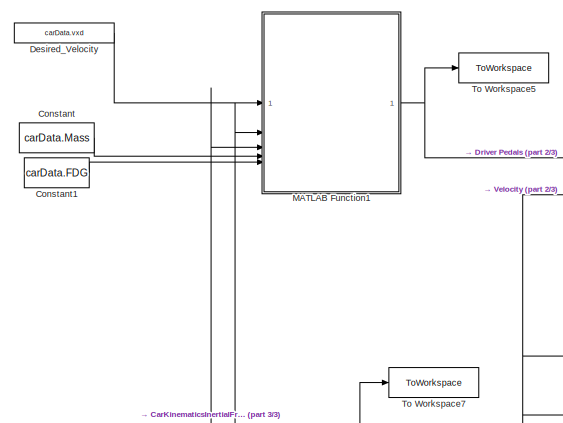
[diagram: root canvas - part 1/3, top left region]
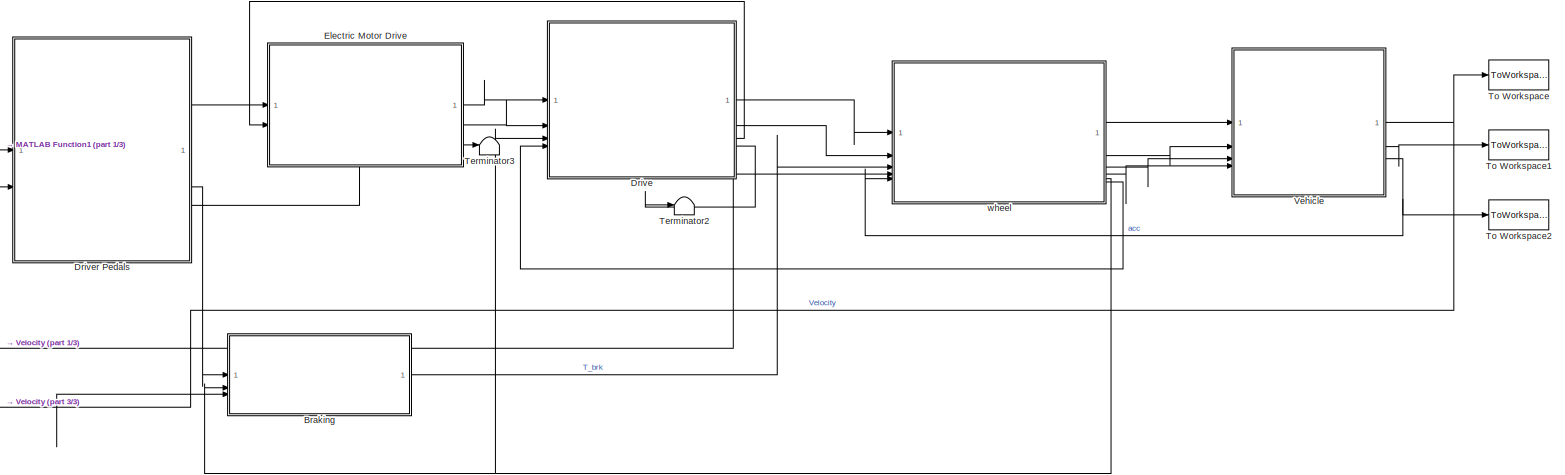
[diagram: root canvas - part 2/3, full width, top band]
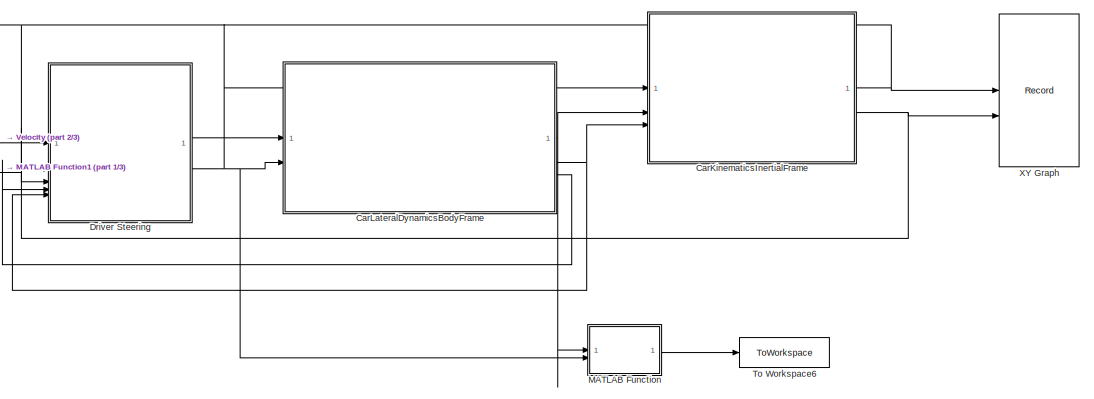
[diagram: root canvas - part 3/3, bottom center region]
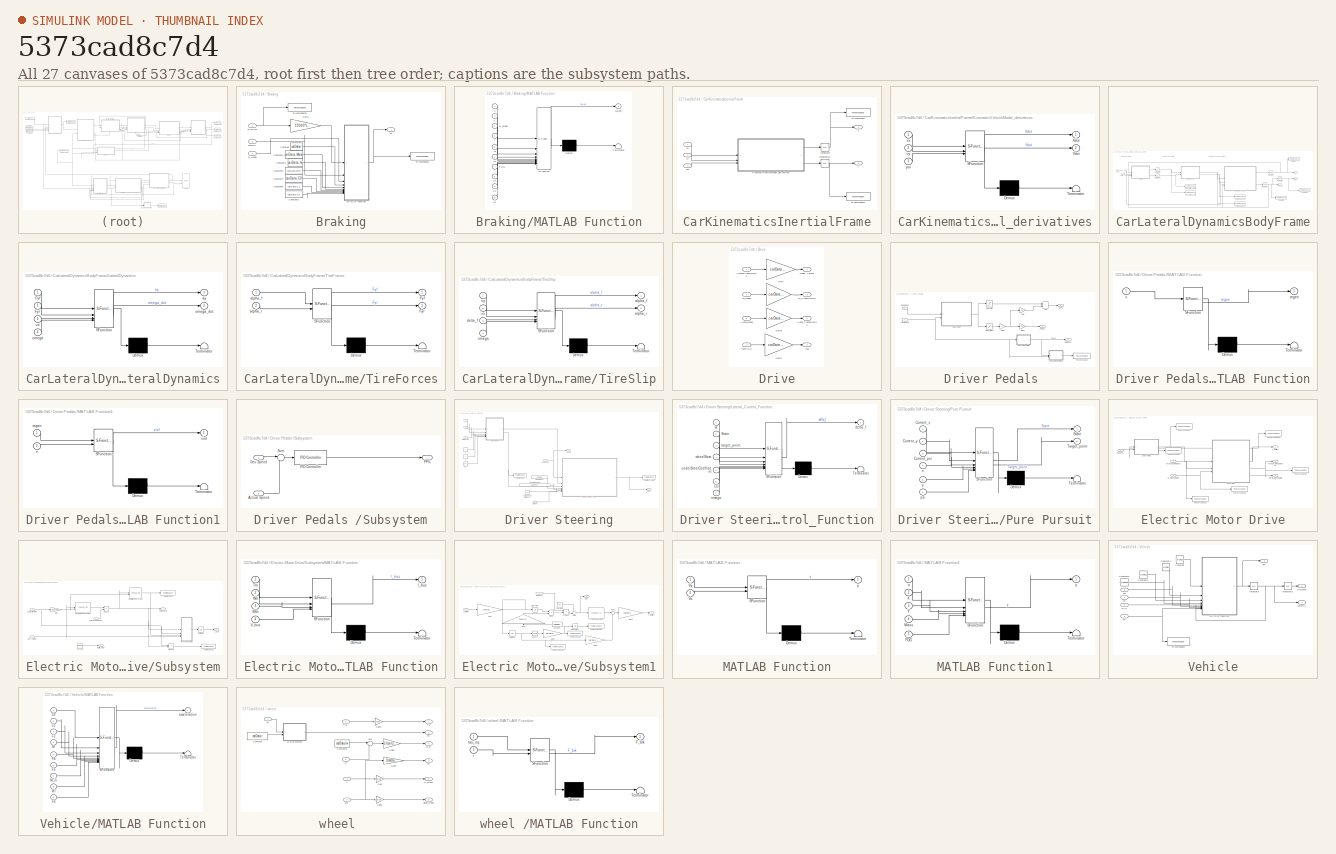
[diagram: thumbnail index - all 27 canvases of the model, root first then tree order]
MODEL slx_5373cad8c7d4
KIND model
CONFIG AbsTol = auto
CONFIG EnableMultiTasking = off
CONFIG FixedStep = 0.1
CONFIG MaxStep = auto
CONFIG MinStep = auto
CONFIG RelTol = 1e-3
CONFIG SampleTimeConstraint = Unconstrained
CONFIG SolverName = FixedStepAuto
CONFIG StartTime = 0.0
CONFIG StopTime = 3600
BLOCK [SubSystem] Braking
BLOCK [Inport] Braking/BrkCMD 
BLOCK [Constant] Braking/Constant
  Value = carData.r
BLOCK [Constant] Braking/Constant1
  Value = carData.Mass
BLOCK [Constant] Braking/Constant2
  Value = carData.Iw
BLOCK [Constant] Braking/Constant3
  Value = carData.FDG
BLOCK [Constant] Braking/Constant4
  Value = carData.C0
BLOCK [Constant] Braking/Constant5
  Value = carData.C1
BLOCK [Constant] Braking/Constant6
  Value = carData.C2
BLOCK [Gain] Braking/Gain1
  Gain = 10000*carData.r
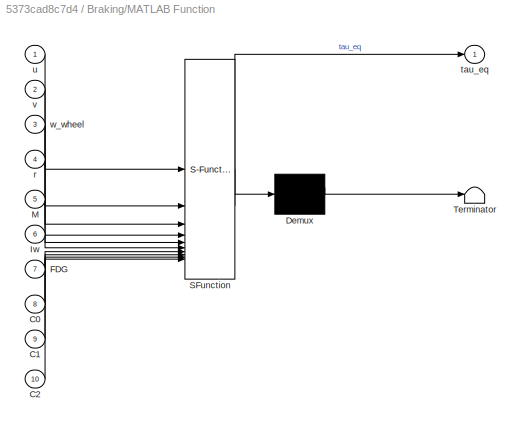
BLOCK [SubSystem] Braking/MATLAB Function
  ErrorFcn = Stateflow.Translate.translate
  PermitHierarchicalResolution = ExplicitOnly
  SFBlockType = MATLAB Function
  TreatAsAtomicUnit = on
BLOCK [Demux] Braking/MATLAB Function/ Demux 
  Outputs = 1
BLOCK [S-Function] Braking/MATLAB Function/ SFunction 
  EnableBusSupport = on
  FunctionName = sf_sfun
  PortCounts = [10 2]
  SFcnIsStateOwnerBlock = off
  SFunctionDeploymentMode = off
  Tag = Stateflow S-Function 7
BLOCK [Terminator] Braking/MATLAB Function/ Terminator 
BLOCK [Inport] Braking/MATLAB Function/C0
  Port = 8
BLOCK [Inport] Braking/MATLAB Function/C1
  Port = 9
BLOCK [Inport] Braking/MATLAB Function/C2
  Port = 10
BLOCK [Inport] Braking/MATLAB Function/FDG
  Port = 7
BLOCK [Inport] Braking/MATLAB Function/Iw
  Port = 6
BLOCK [Inport] Braking/MATLAB Function/M
  Port = 5
BLOCK [Inport] Braking/MATLAB Function/r
  Port = 4
BLOCK [Outport] Braking/MATLAB Function/tau_eq
BLOCK [Inport] Braking/MATLAB Function/u
BLOCK [Inport] Braking/MATLAB Function/v
  Port = 2
BLOCK [Inport] Braking/MATLAB Function/w_wheel
  Port = 3
BLOCK [Outport] Braking/Tb 
  VectorParamsAs1DForOutWhenUnconnected = off
BLOCK [ToWorkspace] Braking/To Workspace
  FixptAsFi = on
  MaxDataPoints = inf
  SampleTime = -1
  SaveFormat = Timeseries
  VariableName = brake
BLOCK [ToWorkspace] Braking/To Workspace1
  FixptAsFi = on
  MaxDataPoints = inf
  SampleTime = -1
  SaveFormat = Timeseries
  VariableName = beta
BLOCK [Inport] Braking/velocity 
  Port = 3
BLOCK [Inport] Braking/w_wheel
  Port = 2
BLOCK [SubSystem] CarKinematicsInertialFrame
BLOCK [Integrator] CarKinematicsInertialFrame/Integrator
  InitialCondition = carData.init.X0
BLOCK [Integrator] CarKinematicsInertialFrame/Integrator1
  InitialCondition = carData.init.Y0
BLOCK [SubSystem] CarKinematicsInertialFrame/KinematicVehicleModel_derivatives
  ErrorFcn = Stateflow.Translate.translate
  PermitHierarchicalResolution = ExplicitOnly
  SFBlockType = MATLAB Function
  TreatAsAtomicUnit = on
BLOCK [Demux] CarKinematicsInertialFrame/KinematicVehicleModel_derivatives/ Demux 
  Outputs = 1
BLOCK [S-Function] CarKinematicsInertialFrame/KinematicVehicleModel_derivatives/ SFunction 
  EnableBusSupport = on
  FunctionName = sf_sfun
  PortCounts = [3 3]
  SFcnIsStateOwnerBlock = off
  SFunctionDeploymentMode = off
  Tag = Stateflow S-Function 5
BLOCK [Terminator] CarKinematicsInertialFrame/KinematicVehicleModel_derivatives/ Terminator 
BLOCK [Outport] CarKinematicsInertialFrame/KinematicVehicleModel_derivatives/Xdot
BLOCK [Outport] CarKinematicsInertialFrame/KinematicVehicleModel_derivatives/Ydot
  Port = 2
BLOCK [Inport] CarKinematicsInertialFrame/KinematicVehicleModel_derivatives/psi
  Port = 3
BLOCK [Inport] CarKinematicsInertialFrame/KinematicVehicleModel_derivatives/vx
BLOCK [Inport] CarKinematicsInertialFrame/KinematicVehicleModel_derivatives/vy
  Port = 2
BLOCK [ToWorkspace] CarKinematicsInertialFrame/To Workspace
  FixptAsFi = on
  MaxDataPoints = inf
  SampleTime = -1
  SaveFormat = Timeseries
  VariableName = X
BLOCK [ToWorkspace] CarKinematicsInertialFrame/To Workspace1
  FixptAsFi = on
  MaxDataPoints = inf
  SampleTime = -1
  SaveFormat = Timeseries
  VariableName = Y
BLOCK [Outport] CarKinematicsInertialFrame/X
BLOCK [Outport] CarKinematicsInertialFrame/Y
  Port = 2
BLOCK [Inport] CarKinematicsInertialFrame/psi
  Port = 3
BLOCK [Inport] CarKinematicsInertialFrame/vx
BLOCK [Inport] CarKinematicsInertialFrame/vy
  Port = 2
BLOCK [SubSystem] CarLateralDynamicsBodyFrame
BLOCK [ToWorkspace] CarLateralDynamicsBodyFrame/Front_Slip_Angle
  FixptAsFi = on
  MaxDataPoints = inf
  SampleTime = -1
  SaveFormat = Timeseries
  VariableName = alpha_f
BLOCK [ToWorkspace] CarLateralDynamicsBodyFrame/Heading
  FixptAsFi = on
  MaxDataPoints = inf
  SampleTime = -1
  SaveFormat = Timeseries
  VariableName = psi
BLOCK [Integrator] CarLateralDynamicsBodyFrame/Integrator
  InitialCondition = carData.init.vy0
BLOCK [Integrator] CarLateralDynamicsBodyFrame/Integrator1
  InitialCondition = carData.init.omega0
BLOCK [Integrator] CarLateralDynamicsBodyFrame/Integrator2
  InitialCondition = carData.init.psi0
BLOCK [SubSystem] CarLateralDynamicsBodyFrame/LateralDynamics
  ErrorFcn = Stateflow.Translate.translate
  PermitHierarchicalResolution = ExplicitOnly
  SFBlockType = MATLAB Function
  TreatAsAtomicUnit = on
BLOCK [Demux] CarLateralDynamicsBodyFrame/LateralDynamics/ Demux 
  Outputs = 1
BLOCK [S-Function] CarLateralDynamicsBodyFrame/LateralDynamics/ SFunction 
  EnableBusSupport = on
  FunctionName = sf_sfun
  Parameters = carData
  PortCounts = [4 3]
  SFcnIsStateOwnerBlock = off
  SFunctionDeploymentMode = off
  Tag = Stateflow S-Function 6
BLOCK [Terminator] CarLateralDynamicsBodyFrame/LateralDynamics/ Terminator 
BLOCK [Inport] CarLateralDynamicsBodyFrame/LateralDynamics/Fyf
BLOCK [Inport] CarLateralDynamicsBodyFrame/LateralDynamics/Fyr
  Port = 2
BLOCK [Outport] CarLateralDynamicsBodyFrame/LateralDynamics/ay
BLOCK [Inport] CarLateralDynamicsBodyFrame/LateralDynamics/omega
  Port = 4
BLOCK [Outport] CarLateralDynamicsBodyFrame/LateralDynamics/omega_dot
  Port = 2
BLOCK [Inport] CarLateralDynamicsBodyFrame/LateralDynamics/vx
  Port = 3
BLOCK [ToWorkspace] CarLateralDynamicsBodyFrame/Rear_Slip_Angle
  FixptAsFi = on
  MaxDataPoints = inf
  SampleTime = -1
  SaveFormat = Timeseries
  VariableName = alpha_r
BLOCK [Saturate] CarLateralDynamicsBodyFrame/Saturation
  LowerLimit = -carData.maxAlpha
  UpperLimit = carData.maxAlpha
BLOCK [Saturate] CarLateralDynamicsBodyFrame/Saturation1
  LowerLimit = -carData.maxAlpha
  UpperLimit = carData.maxAlpha
BLOCK [SubSystem] CarLateralDynamicsBodyFrame/TireForces
  ErrorFcn = Stateflow.Translate.translate
  PermitHierarchicalResolution = ExplicitOnly
  SFBlockType = MATLAB Function
  TreatAsAtomicUnit = on
BLOCK [Demux] CarLateralDynamicsBodyFrame/TireForces/ Demux 
  Outputs = 1
BLOCK [S-Function] CarLateralDynamicsBodyFrame/TireForces/ SFunction 
  EnableBusSupport = on
  FunctionName = sf_sfun
  Parameters = carData
  PortCounts = [2 3]
  SFcnIsStateOwnerBlock = off
  SFunctionDeploymentMode = off
  Tag = Stateflow S-Function 8
BLOCK [Terminator] CarLateralDynamicsBodyFrame/TireForces/ Terminator 
BLOCK [Outport] CarLateralDynamicsBodyFrame/TireForces/Fyf
BLOCK [Outport] CarLateralDynamicsBodyFrame/TireForces/Fyr
  Port = 2
BLOCK [Inport] CarLateralDynamicsBodyFrame/TireForces/alpha_f
BLOCK [Inport] CarLateralDynamicsBodyFrame/TireForces/alpha_r
  Port = 2
BLOCK [SubSystem] CarLateralDynamicsBodyFrame/TireSlip
  ErrorFcn = Stateflow.Translate.translate
  PermitHierarchicalResolution = ExplicitOnly
  SFBlockType = MATLAB Function
  TreatAsAtomicUnit = on
BLOCK [Demux] CarLateralDynamicsBodyFrame/TireSlip/ Demux 
  Outputs = 1
BLOCK [S-Function] CarLateralDynamicsBodyFrame/TireSlip/ SFunction 
  EnableBusSupport = on
  FunctionName = sf_sfun
  Parameters = carData
  PortCounts = [4 3]
  SFcnIsStateOwnerBlock = off
  SFunctionDeploymentMode = off
  Tag = Stateflow S-Function 9
BLOCK [Terminator] CarLateralDynamicsBodyFrame/TireSlip/ Terminator 
BLOCK [Outport] CarLateralDynamicsBodyFrame/TireSlip/alpha_f
BLOCK [Outport] CarLateralDynamicsBodyFrame/TireSlip/alpha_r
  Port = 2
BLOCK [Inport] CarLateralDynamicsBodyFrame/TireSlip/delta_f
  Port = 3
BLOCK [Inport] CarLateralDynamicsBodyFrame/TireSlip/omega
  Port = 4
BLOCK [Inport] CarLateralDynamicsBodyFrame/TireSlip/vx
  Port = 2
BLOCK [Inport] CarLateralDynamicsBodyFrame/TireSlip/vy
BLOCK [ToWorkspace] CarLateralDynamicsBodyFrame/To Workspace5
  FixptAsFi = on
  MaxDataPoints = inf
  SampleTime = -1
  SaveFormat = Timeseries
  VariableName = Fyf
BLOCK [ToWorkspace] CarLateralDynamicsBodyFrame/To Workspace6
  FixptAsFi = on
  MaxDataPoints = inf
  SampleTime = -1
  SaveFormat = Timeseries
  VariableName = Fyr
BLOCK [ToWorkspace] CarLateralDynamicsBodyFrame/Velocity_Y
  FixptAsFi = on
  MaxDataPoints = inf
  SampleTime = -1
  SaveFormat = Timeseries
  VariableName = vy
BLOCK [ToWorkspace] CarLateralDynamicsBodyFrame/Yaw Rate
  FixptAsFi = on
  MaxDataPoints = inf
  SampleTime = -1
  SaveFormat = Timeseries
  VariableName = omega
BLOCK [Inport] CarLateralDynamicsBodyFrame/delta_f
BLOCK [Outport] CarLateralDynamicsBodyFrame/omega
  Port = 3
BLOCK [Outport] CarLateralDynamicsBodyFrame/psi
  Port = 2
BLOCK [Inport] CarLateralDynamicsBodyFrame/vx
  Port = 2
BLOCK [Outport] CarLateralDynamicsBodyFrame/vy
BLOCK [Constant] Constant
  Value = carData.Mass
BLOCK [Constant] Constant1
  Value = carData.FDG
BLOCK [Constant] Desired_Velocity
  Value = carData.vxd
BLOCK [SubSystem] Drive
BLOCK [Outport] Drive/Alpha_Transmission
  Port = 4
BLOCK [Inport] Drive/Alpha_Wheel
  Port = 4
BLOCK [Gain] Drive/Gain
  Gain = carData.FDG
BLOCK [Gain] Drive/Gain1
  Gain = carData.FDG^2
BLOCK [Gain] Drive/Gain2
  Gain = carData.FDG
BLOCK [Gain] Drive/Gain3
  Gain = carData.FDG
BLOCK [Inport] Drive/Inertia_In
  Port = 2
BLOCK [Outport] Drive/Iout
  Port = 2
BLOCK [Inport] Drive/TorqueTransmission
BLOCK [Outport] Drive/W_Transmission
  Port = 3
BLOCK [Inport] Drive/W_Wheel
  Port = 3
BLOCK [Outport] Drive/Wheel Torque
BLOCK [SubSystem] Driver Pedals 
BLOCK [Outport] Driver Pedals /APP%
BLOCK [Inport] Driver Pedals /Actual Speed
  Port = 2
BLOCK [Sum] Driver Pedals /Add
  IconShape = rectangular
BLOCK [Inport] Driver Pedals /Des Speed 
BLOCK [Outport] Driver Pedals /FBPP% 
  Port = 2
BLOCK [Gain] Driver Pedals /Gain
  Gain = 0.1
BLOCK [Gain] Driver Pedals /Gain1
  Gain = 0.9
BLOCK [Gain] Driver Pedals /Gain2
  Gain = -1
BLOCK [SubSystem] Driver Pedals /MATLAB Function
  ErrorFcn = Stateflow.Translate.translate
  PermitHierarchicalResolution = ExplicitOnly
  SFBlockType = MATLAB Function
  TreatAsAtomicUnit = on
BLOCK [Demux] Driver Pedals /MATLAB Function/ Demux 
  Outputs = 1
BLOCK [S-Function] Driver Pedals /MATLAB Function/ SFunction 
  EnableBusSupport = on
  FunctionName = sf_sfun
  PortCounts = [1 2]
  SFcnIsStateOwnerBlock = off
  SFunctionDeploymentMode = off
  Tag = Stateflow S-Function 11
BLOCK [Terminator] Driver Pedals /MATLAB Function/ Terminator 
BLOCK [Outport] Driver Pedals /MATLAB Function/regen
BLOCK [Inport] Driver Pedals /MATLAB Function/v
BLOCK [SubSystem] Driver Pedals /MATLAB Function1
  ErrorFcn = Stateflow.Translate.translate
  PermitHierarchicalResolution = ExplicitOnly
  SFBlockType = MATLAB Function
  TreatAsAtomicUnit = on
BLOCK [Demux] Driver Pedals /MATLAB Function1/ Demux 
  Outputs = 1
BLOCK [S-Function] Driver Pedals /MATLAB Function1/ SFunction 
  EnableBusSupport = on
  FunctionName = sf_sfun
  PortCounts = [2 2]
  SFcnIsStateOwnerBlock = off
  SFunctionDeploymentMode = off
  Tag = Stateflow S-Function 13
BLOCK [Terminator] Driver Pedals /MATLAB Function1/ Terminator 
BLOCK [Inport] Driver Pedals /MATLAB Function1/regen
BLOCK [Inport] Driver Pedals /MATLAB Function1/v
  Port = 2
BLOCK [Outport] Driver Pedals /MATLAB Function1/viol
BLOCK [Outport] Driver Pedals /Regen%
  Port = 3
BLOCK [Saturate] Driver Pedals /Saturation
  LowerLimit = 0
  UpperLimit = 100
BLOCK [Saturate] Driver Pedals /Saturation1
  LowerLimit = -100
  UpperLimit = 0
BLOCK [SubSystem] Driver Pedals /Subsystem
BLOCK [Inport] Driver Pedals /Subsystem/Actual Speed
  Port = 2
BLOCK [Inport] Driver Pedals /Subsystem/Des Speed 
BLOCK [Reference] Driver Pedals /Subsystem/PID Controller  REF=slpidlib/PID Controller
  SourceBlock = slpidlib/PID Controller
  SourceType = PID 1dof
BLOCK [Outport] Driver Pedals /Subsystem/PP%
BLOCK [Sum] Driver Pedals /Subsystem/Sum
  Inputs = |+-
BLOCK [ToWorkspace] Driver Pedals /To Workspace
  FixptAsFi = on
  MaxDataPoints = inf
  SampleTime = -1
  SaveFormat = Timeseries
  VariableName = brake_viol
BLOCK [SubSystem] Driver Steering
BLOCK [Inport] Driver Steering/Actual_Vel
BLOCK [Inport] Driver Steering/Current_psi
  Port = 5
BLOCK [SubSystem] Driver Steering/Lateral_Control_Function
  ErrorFcn = Stateflow.Translate.translate
  PermitHierarchicalResolution = ExplicitOnly
  SFBlockType = MATLAB Function
  TreatAsAtomicUnit = on
BLOCK [Demux] Driver Steering/Lateral_Control_Function/ Demux 
  Outputs = 1
BLOCK [S-Function] Driver Steering/Lateral_Control_Function/ SFunction 
  EnableBusSupport = on
  FunctionName = sf_sfun
  PortCounts = [7 2]
  SFcnIsStateOwnerBlock = off
  SFunctionDeploymentMode = off
  Tag = Stateflow S-Function 10
BLOCK [Terminator] Driver Steering/Lateral_Control_Function/ Terminator 
BLOCK [Inport] Driver Steering/Lateral_Control_Function/LD
  Port = 6
BLOCK [Inport] Driver Steering/Lateral_Control_Function/State
  Port = 2
BLOCK [Outport] Driver Steering/Lateral_Control_Function/delta_f
BLOCK [Inport] Driver Steering/Lateral_Control_Function/omega
  Port = 7
BLOCK [Inport] Driver Steering/Lateral_Control_Function/target_point
  Port = 3
BLOCK [Inport] Driver Steering/Lateral_Control_Function/underSteerCoefficient
  Port = 5
BLOCK [Inport] Driver Steering/Lateral_Control_Function/vx
BLOCK [Inport] Driver Steering/Lateral_Control_Function/wheelBase
  Port = 4
BLOCK [Constant] Driver Steering/Look ahead Distance
  Value = 10
BLOCK [Inport] Driver Steering/Omega
  Port = 4
BLOCK [SubSystem] Driver Steering/Pure Pursuit
  ErrorFcn = Stateflow.Translate.translate
  PermitHierarchicalResolution = ExplicitOnly
  SFBlockType = MATLAB Function
  TreatAsAtomicUnit = on
BLOCK [Demux] Driver Steering/Pure Pursuit/ Demux 
  Outputs = 1
BLOCK [S-Function] Driver Steering/Pure Pursuit/ SFunction 
  EnableBusSupport = on
  FunctionName = sf_sfun
  PortCounts = [6 3]
  SFcnIsStateOwnerBlock = off
  SFunctionDeploymentMode = off
  Tag = Stateflow S-Function 1
BLOCK [Terminator] Driver Steering/Pure Pursuit/ Terminator 
BLOCK [Inport] Driver Steering/Pure Pursuit/Current_psi
  Port = 3
BLOCK [Inport] Driver Steering/Pure Pursuit/Current_x
BLOCK [Inport] Driver Steering/Pure Pursuit/Current_y
  Port = 2
BLOCK [Outport] Driver Steering/Pure Pursuit/State
BLOCK [Outport] Driver Steering/Pure Pursuit/Target_point
  Port = 2
BLOCK [Inport] Driver Steering/Pure Pursuit/psi
  Port = 6
BLOCK [Inport] Driver Steering/Pure Pursuit/x
  Port = 4
BLOCK [Inport] Driver Steering/Pure Pursuit/y
  Port = 5
BLOCK [ToWorkspace] Driver Steering/Steering_Angle
  FixptAsFi = on
  MaxDataPoints = inf
  SampleTime = -1
  SaveFormat = Timeseries
  VariableName = delta
BLOCK [ToWorkspace] Driver Steering/To Workspace
  FixptAsFi = on
  MaxDataPoints = inf
  SampleTime = -1
  SaveFormat = Timeseries
  VariableName = Id_pt
BLOCK [Constant] Driver Steering/UnderSteerCoeff
  Value = carData.understeerCoeff
BLOCK [Outport] Driver Steering/Vxd1
  Port = 2
BLOCK [Constant] Driver Steering/WheelBase
  Value = carData.lf + carData.lr
BLOCK [Inport] Driver Steering/X
  Port = 2
BLOCK [Inport] Driver Steering/Y
  Port = 3
BLOCK [Outport] Driver Steering/delta_f
BLOCK [Constant] Driver Steering/psi
  Value = psi
BLOCK [Constant] Driver Steering/x
  Value = x
BLOCK [Constant] Driver Steering/y
  Value = y
BLOCK [SubSystem] Electric Motor Drive
  PortSchema = {"entries":[{"content":{"sides":[{"content":{"connectorIds":["In1","In2"]},"type":"ConnectorPlacement.EquallySpacedRectSide","uuid":"06f5b496-3bf6-4a8b-aebb-c7eaab5f1ccf"},{"content":{"connectorIds":["Out1","Out2","Out3"],"side":"RIGHT"},"type":"ConnectorPlacement.EquallySpacedRectSide","uuid":"1c240108-0efa-470d-9e35-d17d0925c84e"},{"content":{"side":"TOP"},"type":"ConnectorPlacement.EquallySpace...<+391ch>
BLOCK [Outport] Electric Motor Drive/Inertia_ElectricMotor
  Port = 2
BLOCK [Inport] Electric Motor Drive/Regen%
  Port = 3
BLOCK [SubSystem] Electric Motor Drive/Subsystem
BLOCK [Inport] Electric Motor Drive/Subsystem/Bus_Voltage
BLOCK [Constant] Electric Motor Drive/Subsystem/Constant
  Value = motorData.Inertia
BLOCK [Gain] Electric Motor Drive/Subsystem/Gain
  Gain = rps2rpm
BLOCK [Outport] Electric Motor Drive/Subsystem/I_bus
BLOCK [Outport] Electric Motor Drive/Subsystem/Inertia_Motor
  Port = 3
BLOCK [SubSystem] Electric Motor Drive/Subsystem/MATLAB Function
  ErrorFcn = Stateflow.Translate.translate
  PermitHierarchicalResolution = ExplicitOnly
  SFBlockType = MATLAB Function
  TreatAsAtomicUnit = on
BLOCK [Demux] Electric Motor Drive/Subsystem/MATLAB Function/ Demux 
  Outputs = 1
BLOCK [S-Function] Electric Motor Drive/Subsystem/MATLAB Function/ SFunction 
  EnableBusSupport = on
  FunctionName = sf_sfun
  PortCounts = [4 2]
  SFcnIsStateOwnerBlock = off
  SFunctionDeploymentMode = off
  Tag = Stateflow S-Function 4
BLOCK [Terminator] Electric Motor Drive/Subsystem/MATLAB Function/ Terminator 
BLOCK [Inport] Electric Motor Drive/Subsystem/MATLAB Function/Effn
  Port = 3
BLOCK [Outport] Electric Motor Drive/Subsystem/MATLAB Function/I_bus
BLOCK [Inport] Electric Motor Drive/Subsystem/MATLAB Function/Tm
BLOCK [Inport] Electric Motor Drive/Subsystem/MATLAB Function/V_bus
  Port = 4
BLOCK [Inport] Electric Motor Drive/Subsystem/MATLAB Function/Wn
  Port = 2
BLOCK [Lookup_n-D] Electric Motor Drive/Subsystem/Max Motor Torque Table1
  BreakpointsForDimension1 = motorData.vbus
  BreakpointsForDimension2 = motorData.rpm
  InputPortMap = u0,u1
  InternalRulePriority = Speed
  RndMeth = Simplest
  Table = motorData.maxtorque
BLOCK [Lookup_n-D] Electric Motor Drive/Subsystem/Motor Effeciency Table
  BreakpointsForDimension1 = motorData.eta_torque
  BreakpointsForDimension2 = motorData.eta_speed
  InputPortMap = u0,u1
  InternalRulePriority = Speed
  RndMeth = Simplest
  Table = motorData.eta_val
BLOCK [Outport] Electric Motor Drive/Subsystem/Motor Torque
  Port = 2
BLOCK [Product] Electric Motor Drive/Subsystem/Product
BLOCK [Product] Electric Motor Drive/Subsystem/Product1
BLOCK [ToWorkspace] Electric Motor Drive/Subsystem/To Workspace
  FixptAsFi = on
  MaxDataPoints = inf
  SampleTime = -1
  SaveFormat = Timeseries
  VariableName = effeciency_motor
BLOCK [ToWorkspace] Electric Motor Drive/Subsystem/To Workspace1
  FixptAsFi = on
  MaxDataPoints = inf
  SampleTime = -1
  SaveFormat = Timeseries
  VariableName = MotorPower
BLOCK [Inport] Electric Motor Drive/Subsystem/TorqueCommand%
  Port = 2
BLOCK [UnitDelay] Electric Motor Drive/Subsystem/Unit Delay
  HasFrameUpgradeWarning = on
  SampleTime = -1
BLOCK [Inport] Electric Motor Drive/Subsystem/W_ElectricMotor
  Port = 3
BLOCK [SubSystem] Electric Motor Drive/Subsystem1
BLOCK [Lookup_n-D] Electric Motor Drive/Subsystem1/1-D Lookup Table
  BreakpointsForDimension1 = batData.SOC
  InputPortMap = u0
  InternalRulePriority = Speed
  NumberOfTableDimensions = 1
  RndMeth = Simplest
  Table = batData.OCV
BLOCK [Constant] Electric Motor Drive/Subsystem1/Constant
  NameLocation = top
  Value = batData.C
BLOCK [Constant] Electric Motor Drive/Subsystem1/Constant1
  Value = 0.8
BLOCK [Product] Electric Motor Drive/Subsystem1/Divide
  Inputs = */
BLOCK [Gain] Electric Motor Drive/Subsystem1/Gain
  Gain = 1/batData.numParallel
BLOCK [Gain] Electric Motor Drive/Subsystem1/Gain1
  Gain = 3600/(batData.numParallel)
  NameLocation = right
BLOCK [Gain] Electric Motor Drive/Subsystem1/Gain2
  Gain = batData.Rint
BLOCK [Gain] Electric Motor Drive/Subsystem1/Gain3
  Gain = batData.numSeries
BLOCK [Gain] Electric Motor Drive/Subsystem1/Gain4
  Gain = batData.Rint
BLOCK [Inport] Electric Motor Drive/Subsystem1/I_battery
BLOCK [Integrator] Electric Motor Drive/Subsystem1/Integrator
BLOCK [Integrator] Electric Motor Drive/Subsystem1/Integrator1
BLOCK [Product] Electric Motor Drive/Subsystem1/Product
BLOCK [Inport] Electric Motor Drive/Subsystem1/Regen%
  Port = 2
BLOCK [Outport] Electric Motor Drive/Subsystem1/SOC
  Port = 2
BLOCK [Math] Electric Motor Drive/Subsystem1/Square
  Operator = square
BLOCK [Sum] Electric Motor Drive/Subsystem1/Sum
  Inputs = +-|
BLOCK [Sum] Electric Motor Drive/Subsystem1/Sum1
  Inputs = |+-
BLOCK [ToWorkspace] Electric Motor Drive/Subsystem1/To Workspace
  FixptAsFi = on
  MaxDataPoints = inf
  SampleTime = -1
  SaveFormat = Timeseries
  VariableName = BatteryPowerLosses
BLOCK [ToWorkspace] Electric Motor Drive/Subsystem1/To Workspace1
  FixptAsFi = on
  MaxDataPoints = inf
  SampleTime = -1
  SaveFormat = Timeseries
  VariableName = BatteryEnergyLosses
BLOCK [ToWorkspace] Electric Motor Drive/Subsystem1/To Workspace2
  FixptAsFi = on
  MaxDataPoints = inf
  SampleTime = -1
  SaveFormat = Timeseries
  VariableName = OCV
BLOCK [UnitDelay] Electric Motor Drive/Subsystem1/Unit Delay
  HasFrameUpgradeWarning = on
  SampleTime = -1
BLOCK [Outport] Electric Motor Drive/Subsystem1/V_battery
BLOCK [ToWorkspace] Electric Motor Drive/To Workspace
  FixptAsFi = on
  MaxDataPoints = inf
  SampleTime = -1
  SaveFormat = Timeseries
  VariableName = SOC
BLOCK [ToWorkspace] Electric Motor Drive/To Workspace1
  FixptAsFi = on
  MaxDataPoints = inf
  SampleTime = -1
  SaveFormat = Timeseries
  VariableName = alpha
BLOCK [ToWorkspace] Electric Motor Drive/To Workspace2
  FixptAsFi = on
  MaxDataPoints = inf
  SampleTime = -1
  SaveFormat = Timeseries
  VariableName = V_bat
BLOCK [ToWorkspace] Electric Motor Drive/To Workspace3
  FixptAsFi = on
  MaxDataPoints = inf
  SampleTime = -1
  SaveFormat = Timeseries
  VariableName = I_bat
BLOCK [ToWorkspace] Electric Motor Drive/To Workspace4
  FixptAsFi = on
  MaxDataPoints = inf
  SampleTime = -1
  SaveFormat = Timeseries
  VariableName = motor_torque
BLOCK [ToWorkspace] Electric Motor Drive/To Workspace5
  FixptAsFi = on
  MaxDataPoints = inf
  SampleTime = -1
  SaveFormat = Timeseries
  VariableName = motor_speed
BLOCK [Inport] Electric Motor Drive/TorqueCommand%
BLOCK [Outport] Electric Motor Drive/Torque_ElectricMotor
BLOCK [Outport] Electric Motor Drive/V_battery
  Port = 3
BLOCK [Inport] Electric Motor Drive/W_ElectricMotor
  Port = 2
BLOCK [SubSystem] MATLAB Function
  ErrorFcn = Stateflow.Translate.translate
  PermitHierarchicalResolution = ExplicitOnly
  SFBlockType = MATLAB Function
  TreatAsAtomicUnit = on
BLOCK [Demux] MATLAB Function/ Demux 
  Outputs = 1
BLOCK [S-Function] MATLAB Function/ SFunction 
  EnableBusSupport = on
  FunctionName = sf_sfun
  PortCounts = [2 2]
  SFcnIsStateOwnerBlock = off
  SFunctionDeploymentMode = off
  Tag = Stateflow S-Function 12
BLOCK [Terminator] MATLAB Function/ Terminator 
BLOCK [Inport] MATLAB Function/Vx
  Port = 2
BLOCK [Inport] MATLAB Function/Vy
BLOCK [Outport] MATLAB Function/y
BLOCK [SubSystem] MATLAB Function1
  ErrorFcn = Stateflow.Translate.translate
  PermitHierarchicalResolution = ExplicitOnly
  SFBlockType = MATLAB Function
  TreatAsAtomicUnit = on
BLOCK [Demux] MATLAB Function1/ Demux 
  Outputs = 1
BLOCK [S-Function] MATLAB Function1/ SFunction 
  EnableBusSupport = on
  FunctionName = sf_sfun
  PortCounts = [5 2]
  SFcnIsStateOwnerBlock = off
  SFunctionDeploymentMode = off
  Tag = Stateflow S-Function 14
BLOCK [Terminator] MATLAB Function1/ Terminator 
BLOCK [Inport] MATLAB Function1/FDG
  Port = 5
BLOCK [Inport] MATLAB Function1/Mass
  Port = 4
BLOCK [Inport] MATLAB Function1/X
  Port = 2
BLOCK [Inport] MATLAB Function1/Y
  Port = 3
BLOCK [Inport] MATLAB Function1/u
BLOCK [Outport] MATLAB Function1/y
BLOCK [Terminator] Terminator2
BLOCK [Terminator] Terminator3
BLOCK [ToWorkspace] To Workspace
  FixptAsFi = on
  MaxDataPoints = inf
  SampleTime = -1
  SaveFormat = Timeseries
  VariableName = vel
BLOCK [ToWorkspace] To Workspace1
  FixptAsFi = on
  MaxDataPoints = inf
  SampleTime = -1
  SaveFormat = Timeseries
  VariableName = dist
BLOCK [ToWorkspace] To Workspace2
  FixptAsFi = on
  MaxDataPoints = inf
  SampleTime = -1
  SaveFormat = Timeseries
  VariableName = acc
BLOCK [ToWorkspace] To Workspace5
  FixptAsFi = on
  MaxDataPoints = inf
  SampleTime = -1
  SaveFormat = Timeseries
  VariableName = veh_speed_desd
BLOCK [ToWorkspace] To Workspace6
  FixptAsFi = on
  MaxDataPoints = inf
  SampleTime = -1
  SaveFormat = Timeseries
  VariableName = Velocity
BLOCK [ToWorkspace] To Workspace7
  FixptAsFi = on
  MaxDataPoints = inf
  SampleTime = -1
  SaveFormat = Timeseries
  VariableName = veh_speed
BLOCK [SubSystem] Vehicle
BLOCK [Constant] Vehicle/Constant
  Value = carData.C0
BLOCK [Constant] Vehicle/Constant1
  Value = carData.C1
BLOCK [Constant] Vehicle/Constant2
  Value = carData.C2
BLOCK [Constant] Vehicle/Constant3
  Value = carData.Mass
BLOCK [Outport] Vehicle/Distance 
  Port = 2
  VectorParamsAs1DForOutWhenUnconnected = off
BLOCK [Inport] Vehicle/Fb 
  Port = 2
BLOCK [Inport] Vehicle/Fd
  Port = 3
BLOCK [Inport] Vehicle/Fw 
BLOCK [Integrator] Vehicle/Integrator
  LimitOutput = on
  LowerSaturationLimit = 0
BLOCK [Integrator] Vehicle/Integrator1
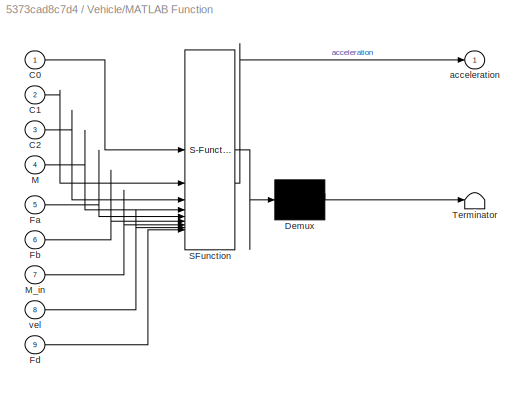
BLOCK [SubSystem] Vehicle/MATLAB Function
  ErrorFcn = Stateflow.Translate.translate
  PermitHierarchicalResolution = ExplicitOnly
  SFBlockType = MATLAB Function
  TreatAsAtomicUnit = on
BLOCK [Demux] Vehicle/MATLAB Function/ Demux 
  Outputs = 1
BLOCK [S-Function] Vehicle/MATLAB Function/ SFunction 
  EnableBusSupport = on
  FunctionName = sf_sfun
  PortCounts = [9 2]
  SFcnIsStateOwnerBlock = off
  SFunctionDeploymentMode = off
  Tag = Stateflow S-Function 2
BLOCK [Terminator] Vehicle/MATLAB Function/ Terminator 
BLOCK [Inport] Vehicle/MATLAB Function/C0
BLOCK [Inport] Vehicle/MATLAB Function/C1
  Port = 2
BLOCK [Inport] Vehicle/MATLAB Function/C2
  Port = 3
BLOCK [Inport] Vehicle/MATLAB Function/Fa
  Port = 5
BLOCK [Inport] Vehicle/MATLAB Function/Fb
  Port = 6
BLOCK [Inport] Vehicle/MATLAB Function/Fd
  Port = 9
BLOCK [Inport] Vehicle/MATLAB Function/M
  Port = 4
BLOCK [Inport] Vehicle/MATLAB Function/M_in
  Port = 7
BLOCK [Outport] Vehicle/MATLAB Function/acceleration
  VectorParamsAs1DForOutWhenUnconnected = off
BLOCK [Inport] Vehicle/MATLAB Function/vel
  Port = 8
BLOCK [Inport] Vehicle/M_in 
  Port = 4
BLOCK [ToWorkspace] Vehicle/To Workspace
  FixptAsFi = on
  MaxDataPoints = inf
  SampleTime = -1
  SaveFormat = Timeseries
  VariableName = Faero
BLOCK [Outport] Vehicle/acc
  Port = 3
BLOCK [Outport] Vehicle/velocity 
  VectorParamsAs1DForOutWhenUnconnected = off
BLOCK [Record] XY Graph
  CompatibilityTag = XY
  FileSettingsInternal = {"entries":[{"content":{"excelSettings":{"content":{},"type":"Streamout.ExcelSettings"}},"type":"Streamout.FileSettingStorage","uuid":""}],"packageUris":["http:\/\/schema.mathworks.com\/mf0\/streamout_blocks\/R2020a"],"version":"1.0"}
  Layout = [1 1]
  SignalsInternal = {"entries":[{"content":{"signals":[{"content":{"blockPath":[],"dimensions":[1],"domain":"","lineColor":"#0072bd","plots":[1],"port":1,"sid":[""],"signalID":2554,"signalName":"CarKinematicsInertialFrame:1"},"type":"RecordBlkView.Signal","uuid":""},{"content":{"blockPath":[],"dimensions":[1],"domain":"","lineColor":"#ff13a6","plots":[1],"port":2,"sid":[""],"signalID":2558,"signalName":"CarKinematics...<+204ch>
  VisualizationBindings = {"xyplotplugin":{"info":[{"series":[{"bindingParametersList":[{"parameter":"Y-Axis","signalID":2558,"signalName":"CarKinematicsInertialFrame:2"},{"parameter":"X-Axis","signalID":2554,"signalName":"CarKinematicsInertialFrame:1"}],"seriesID":48790}],"subplotID":1}]}}
  st = -1
BLOCK [SubSystem] wheel 
BLOCK [Constant] wheel /Constant
  Value = carData.r
BLOCK [Constant] wheel /Constant6
  Value = carData.Iw
BLOCK [Outport] wheel /F_w
BLOCK [Outport] wheel /Fb 
  Port = 2
BLOCK [Outport] wheel /Fd
  Port = 3
BLOCK [Gain] wheel /Gain
  Gain = 1/carData.r
BLOCK [Gain] wheel /Gain1
  Gain = 1/carData.r
BLOCK [Gain] wheel /Gain2
  Gain = 1/carData.r
BLOCK [Gain] wheel /Gain3
  Gain = 1/(carData.r*carData.r)
BLOCK [Gain] wheel /Gain4
  Gain = 1/carData.C2
BLOCK [Inport] wheel /I_in
  Port = 2
BLOCK [SubSystem] wheel /MATLAB Function
  ErrorFcn = Stateflow.Translate.translate
  PermitHierarchicalResolution = ExplicitOnly
  SFBlockType = MATLAB Function
  TreatAsAtomicUnit = on
BLOCK [Demux] wheel /MATLAB Function/ Demux 
  Outputs = 1
BLOCK [S-Function] wheel /MATLAB Function/ SFunction 
  EnableBusSupport = on
  FunctionName = sf_sfun
  PortCounts = [2 2]
  SFcnIsStateOwnerBlock = off
  SFunctionDeploymentMode = off
  Tag = Stateflow S-Function 3
BLOCK [Terminator] wheel /MATLAB Function/ Terminator 
BLOCK [Outport] wheel /MATLAB Function/F_brk
BLOCK [Inport] wheel /MATLAB Function/r
  Port = 2
BLOCK [Inport] wheel /MATLAB Function/tau_eq
BLOCK [Outport] wheel /M_in
  Port = 4
BLOCK [Sum] wheel /Sum
  Inputs = |++
BLOCK [Inport] wheel /T_W
BLOCK [Inport] wheel /Tb
  Port = 3
BLOCK [Inport] wheel /V
  Port = 4
BLOCK [Inport] wheel /acc
  Port = 5
BLOCK [Outport] wheel /alpha_wheel
  Port = 6
BLOCK [Outport] wheel /w_wheel
  Port = 5
ANNOTATION CarLateralDynamicsBodyFrame: Lateral Dynamic Calculations
ANNOTATION CarLateralDynamicsBodyFrame: Tire Force Calculation
ANNOTATION CarLateralDynamicsBodyFrame: Tire Slip Calculation
NET Braking/BrkCMD :1 -> Braking/Gain1:1, Braking/To Workspace1:1
LINE Braking/Constant1:1 -> Braking/MATLAB Function:5
LINE Braking/Constant2:1 -> Braking/MATLAB Function:6
LINE Braking/Constant3:1 -> Braking/MATLAB Function:7
LINE Braking/Constant4:1 -> Braking/MATLAB Function:8
LINE Braking/Constant5:1 -> Braking/MATLAB Function:9
LINE Braking/Constant6:1 -> Braking/MATLAB Function:10
LINE Braking/Constant:1 -> Braking/MATLAB Function:4
LINE Braking/Gain1:1 -> Braking/MATLAB Function:1
NET Braking/MATLAB Function:1 -> Braking/Tb :1, Braking/To Workspace:1
LINE Braking/velocity :1 -> Braking/MATLAB Function:2
LINE Braking/w_wheel:1 -> Braking/MATLAB Function:3
LINE Braking:1 -> wheel :3
NET CarKinematicsInertialFrame/Integrator1:1 -> CarKinematicsInertialFrame/To Workspace1:1, CarKinematicsInertialFrame/Y:1
NET CarKinematicsInertialFrame/Integrator:1 -> CarKinematicsInertialFrame/To Workspace:1, CarKinematicsInertialFrame/X:1
LINE CarKinematicsInertialFrame/KinematicVehicleModel_derivatives:1 -> CarKinematicsInertialFrame/Integrator:1
LINE CarKinematicsInertialFrame/KinematicVehicleModel_derivatives:2 -> CarKinematicsInertialFrame/Integrator1:1
LINE CarKinematicsInertialFrame/psi:1 -> CarKinematicsInertialFrame/KinematicVehicleModel_derivatives:3
LINE CarKinematicsInertialFrame/vx:1 -> CarKinematicsInertialFrame/KinematicVehicleModel_derivatives:1
LINE CarKinematicsInertialFrame/vy:1 -> CarKinematicsInertialFrame/KinematicVehicleModel_derivatives:2
NET CarKinematicsInertialFrame:1 -> Driver Steering:2, MATLAB Function1:2, XY Graph:1
NET CarKinematicsInertialFrame:2 -> Driver Steering:3, MATLAB Function1:3, XY Graph:2
NET CarLateralDynamicsBodyFrame/Integrator1:1 -> CarLateralDynamicsBodyFrame/Integrator2:1, CarLateralDynamicsBodyFrame/LateralDynamics:4, CarLateralDynamicsBodyFrame/TireSlip:4, CarLateralDynamicsBodyFrame/Yaw Rate:1, CarLateralDynamicsBodyFrame/omega:1
NET CarLateralDynamicsBodyFrame/Integrator2:1 -> CarLateralDynamicsBodyFrame/Heading:1, CarLateralDynamicsBodyFrame/psi:1
NET CarLateralDynamicsBodyFrame/Integrator:1 -> CarLateralDynamicsBodyFrame/TireSlip:1, CarLateralDynamicsBodyFrame/Velocity_Y:1, CarLateralDynamicsBodyFrame/vy:1
LINE CarLateralDynamicsBodyFrame/LateralDynamics:1 -> CarLateralDynamicsBodyFrame/Integrator:1
LINE CarLateralDynamicsBodyFrame/LateralDynamics:2 -> CarLateralDynamicsBodyFrame/Integrator1:1
NET CarLateralDynamicsBodyFrame/Saturation1:1 -> CarLateralDynamicsBodyFrame/Rear_Slip_Angle:1, CarLateralDynamicsBodyFrame/TireForces:2
NET CarLateralDynamicsBodyFrame/Saturation:1 -> CarLateralDynamicsBodyFrame/Front_Slip_Angle:1, CarLateralDynamicsBodyFrame/TireForces:1
NET CarLateralDynamicsBodyFrame/TireForces:1 -> CarLateralDynamicsBodyFrame/LateralDynamics:1, CarLateralDynamicsBodyFrame/To Workspace5:1
NET CarLateralDynamicsBodyFrame/TireForces:2 -> CarLateralDynamicsBodyFrame/LateralDynamics:2, CarLateralDynamicsBodyFrame/To Workspace6:1
LINE CarLateralDynamicsBodyFrame/TireSlip:1 -> CarLateralDynamicsBodyFrame/Saturation:1
LINE CarLateralDynamicsBodyFrame/TireSlip:2 -> CarLateralDynamicsBodyFrame/Saturation1:1
LINE CarLateralDynamicsBodyFrame/delta_f:1 -> CarLateralDynamicsBodyFrame/TireSlip:3
NET CarLateralDynamicsBodyFrame/vx:1 -> CarLateralDynamicsBodyFrame/LateralDynamics:3, CarLateralDynamicsBodyFrame/TireSlip:2
NET CarLateralDynamicsBodyFrame:1 -> CarKinematicsInertialFrame:2, MATLAB Function:1
NET CarLateralDynamicsBodyFrame:2 -> CarKinematicsInertialFrame:3, Driver Steering:5
LINE CarLateralDynamicsBodyFrame:3 -> Driver Steering:4
LINE Constant1:1 -> MATLAB Function1:5
LINE Constant:1 -> MATLAB Function1:4
LINE Desired_Velocity:1 -> MATLAB Function1:1
LINE Drive/Alpha_Wheel:1 -> Drive/Gain3:1
LINE Drive/Gain1:1 -> Drive/Iout:1
LINE Drive/Gain2:1 -> Drive/W_Transmission:1
LINE Drive/Gain3:1 -> Drive/Alpha_Transmission:1
LINE Drive/Gain:1 -> Drive/Wheel Torque:1
LINE Drive/Inertia_In:1 -> Drive/Gain1:1
LINE Drive/TorqueTransmission:1 -> Drive/Gain:1
LINE Drive/W_Wheel:1 -> Drive/Gain2:1
LINE Drive:1 -> wheel :1
LINE Drive:2 -> wheel :2
LINE Drive:3 -> Electric Motor Drive:2
LINE Drive:4 -> Terminator2:1
NET Driver Pedals /Actual Speed:1 -> Driver Pedals /MATLAB Function1:2, Driver Pedals /MATLAB Function:1, Driver Pedals /Subsystem:2
LINE Driver Pedals /Add:1 -> Driver Pedals /APP%:1
LINE Driver Pedals /Des Speed :1 -> Driver Pedals /Subsystem:1
LINE Driver Pedals /Gain1:1 -> Driver Pedals /FBPP% :1
NET Driver Pedals /Gain2:1 -> Driver Pedals /Gain1:1, Driver Pedals /Gain:1
LINE Driver Pedals /Gain:1 -> Driver Pedals /Add:2
LINE Driver Pedals /MATLAB Function1:1 -> Driver Pedals /To Workspace:1
NET Driver Pedals /MATLAB Function:1 -> Driver Pedals /MATLAB Function1:1, Driver Pedals /Regen%:1
LINE Driver Pedals /Saturation1:1 -> Driver Pedals /Gain2:1
LINE Driver Pedals /Saturation:1 -> Driver Pedals /Add:1
LINE Driver Pedals /Subsystem/Actual Speed:1 -> Driver Pedals /Subsystem/Sum:2
LINE Driver Pedals /Subsystem/Des Speed :1 -> Driver Pedals /Subsystem/Sum:1
LINE Driver Pedals /Subsystem/PID Controller:1 -> Driver Pedals /Subsystem/PP%:1
LINE Driver Pedals /Subsystem/Sum:1 -> Driver Pedals /Subsystem/PID Controller:1
NET Driver Pedals /Subsystem:1 -> Driver Pedals /Saturation1:1, Driver Pedals /Saturation:1
LINE Driver Pedals :1 -> Electric Motor Drive:1
LINE Driver Pedals :2 -> Braking:1
LINE Driver Pedals :3 -> Electric Motor Drive:3
NET Driver Steering/Actual_Vel:1 -> Driver Steering/Lateral_Control_Function:1, Driver Steering/Vxd1:1
LINE Driver Steering/Current_psi:1 -> Driver Steering/Pure Pursuit:3
NET Driver Steering/Lateral_Control_Function:1 -> Driver Steering/Steering_Angle:1, Driver Steering/delta_f:1
LINE Driver Steering/Look ahead Distance:1 -> Driver Steering/Lateral_Control_Function:6
LINE Driver Steering/Omega:1 -> Driver Steering/Lateral_Control_Function:7
LINE Driver Steering/Pure Pursuit:1 -> Driver Steering/Lateral_Control_Function:2
NET Driver Steering/Pure Pursuit:2 -> Driver Steering/Lateral_Control_Function:3, Driver Steering/To Workspace:1
LINE Driver Steering/UnderSteerCoeff:1 -> Driver Steering/Lateral_Control_Function:5
LINE Driver Steering/WheelBase:1 -> Driver Steering/Lateral_Control_Function:4
LINE Driver Steering/X:1 -> Driver Steering/Pure Pursuit:1
LINE Driver Steering/Y:1 -> Driver Steering/Pure Pursuit:2
LINE Driver Steering/psi:1 -> Driver Steering/Pure Pursuit:6
LINE Driver Steering/x:1 -> Driver Steering/Pure Pursuit:4
LINE Driver Steering/y:1 -> Driver Steering/Pure Pursuit:5
LINE Driver Steering:1 -> CarLateralDynamicsBodyFrame:1
NET Driver Steering:2 -> CarKinematicsInertialFrame:1, CarLateralDynamicsBodyFrame:2, MATLAB Function:2
LINE Electric Motor Drive/Regen%:1 -> Electric Motor Drive/Subsystem1:2
NET Electric Motor Drive/Subsystem/Bus_Voltage:1 -> Electric Motor Drive/Subsystem/MATLAB Function:4, Electric Motor Drive/Subsystem/Max Motor Torque Table1:1
LINE Electric Motor Drive/Subsystem/Constant:1 -> Electric Motor Drive/Subsystem/Inertia_Motor:1
NET Electric Motor Drive/Subsystem/Gain:1 -> Electric Motor Drive/Subsystem/Max Motor Torque Table1:2, Electric Motor Drive/Subsystem/Motor Effeciency Table:2
LINE Electric Motor Drive/Subsystem/MATLAB Function:1 -> Electric Motor Drive/Subsystem/Unit Delay:1
LINE Electric Motor Drive/Subsystem/Max Motor Torque Table1:1 -> Electric Motor Drive/Subsystem/Product:1
NET Electric Motor Drive/Subsystem/Motor Effeciency Table:1 -> Electric Motor Drive/Subsystem/MATLAB Function:3, Electric Motor Drive/Subsystem/To Workspace:1
LINE Electric Motor Drive/Subsystem/Product1:1 -> Electric Motor Drive/Subsystem/To Workspace1:1
NET Electric Motor Drive/Subsystem/Product:1 -> Electric Motor Drive/Subsystem/MATLAB Function:1, Electric Motor Drive/Subsystem/Motor Effeciency Table:1, Electric Motor Drive/Subsystem/Motor Torque:1, Electric Motor Drive/Subsystem/Product1:2
LINE Electric Motor Drive/Subsystem/TorqueCommand%:1 -> Electric Motor Drive/Subsystem/Product:2
LINE Electric Motor Drive/Subsystem/Unit Delay:1 -> Electric Motor Drive/Subsystem/I_bus:1
NET Electric Motor Drive/Subsystem/W_ElectricMotor:1 -> Electric Motor Drive/Subsystem/Gain:1, Electric Motor Drive/Subsystem/MATLAB Function:2, Electric Motor Drive/Subsystem/Product1:1
LINE Electric Motor Drive/Subsystem1/1-D Lookup Table:1 -> Electric Motor Drive/Subsystem1/Sum1:1
LINE Electric Motor Drive/Subsystem1/Constant1:1 -> Electric Motor Drive/Subsystem1/Sum:1
LINE Electric Motor Drive/Subsystem1/Constant:1 -> Electric Motor Drive/Subsystem1/Gain1:1
LINE Electric Motor Drive/Subsystem1/Divide:1 -> Electric Motor Drive/Subsystem1/Product:2
LINE Electric Motor Drive/Subsystem1/Gain1:1 -> Electric Motor Drive/Subsystem1/Divide:2
LINE Electric Motor Drive/Subsystem1/Gain2:1 -> Electric Motor Drive/Subsystem1/Sum1:2
LINE Electric Motor Drive/Subsystem1/Gain3:1 -> Electric Motor Drive/Subsystem1/V_battery:1
NET Electric Motor Drive/Subsystem1/Gain4:1 -> Electric Motor Drive/Subsystem1/Integrator1:1, Electric Motor Drive/Subsystem1/To Workspace:1
NET Electric Motor Drive/Subsystem1/Gain:1 -> Electric Motor Drive/Subsystem1/Integrator:1, Electric Motor Drive/Subsystem1/Unit Delay:1
LINE Electric Motor Drive/Subsystem1/I_battery:1 -> Electric Motor Drive/Subsystem1/Gain:1
LINE Electric Motor Drive/Subsystem1/Integrator1:1 -> Electric Motor Drive/Subsystem1/To Workspace1:1
LINE Electric Motor Drive/Subsystem1/Integrator:1 -> Electric Motor Drive/Subsystem1/Divide:1
LINE Electric Motor Drive/Subsystem1/Product:1 -> Electric Motor Drive/Subsystem1/Sum:2
LINE Electric Motor Drive/Subsystem1/Regen%:1 -> Electric Motor Drive/Subsystem1/Product:1
LINE Electric Motor Drive/Subsystem1/Square:1 -> Electric Motor Drive/Subsystem1/Gain4:1
LINE Electric Motor Drive/Subsystem1/Sum1:1 -> Electric Motor Drive/Subsystem1/Gain3:1
NET Electric Motor Drive/Subsystem1/Sum:1 -> Electric Motor Drive/Subsystem1/1-D Lookup Table:1, Electric Motor Drive/Subsystem1/SOC:1
NET Electric Motor Drive/Subsystem1/Unit Delay:1 -> Electric Motor Drive/Subsystem1/Gain2:1, Electric Motor Drive/Subsystem1/Square:1, Electric Motor Drive/Subsystem1/To Workspace2:1
NET Electric Motor Drive/Subsystem1:1 -> Electric Motor Drive/Subsystem:1, Electric Motor Drive/To Workspace2:1
LINE Electric Motor Drive/Subsystem1:2 -> Electric Motor Drive/To Workspace:1
NET Electric Motor Drive/Subsystem:1 -> Electric Motor Drive/Subsystem1:1, Electric Motor Drive/To Workspace3:1, Electric Motor Drive/V_battery:1
NET Electric Motor Drive/Subsystem:2 -> Electric Motor Drive/To Workspace4:1, Electric Motor Drive/Torque_ElectricMotor:1
LINE Electric Motor Drive/Subsystem:3 -> Electric Motor Drive/Inertia_ElectricMotor:1
NET Electric Motor Drive/TorqueCommand%:1 -> Electric Motor Drive/Subsystem:2, Electric Motor Drive/To Workspace1:1
NET Electric Motor Drive/W_ElectricMotor:1 -> Electric Motor Drive/Subsystem:3, Electric Motor Drive/To Workspace5:1
LINE Electric Motor Drive:1 -> Drive:1
LINE Electric Motor Drive:2 -> Drive:2
LINE Electric Motor Drive:3 -> Terminator3:1
NET MATLAB Function1:1 -> Driver Pedals :1, To Workspace5:1
LINE MATLAB Function:1 -> To Workspace6:1
LINE Vehicle/Constant1:1 -> Vehicle/MATLAB Function:2
LINE Vehicle/Constant2:1 -> Vehicle/MATLAB Function:3
LINE Vehicle/Constant3:1 -> Vehicle/MATLAB Function:4
LINE Vehicle/Constant:1 -> Vehicle/MATLAB Function:1
LINE Vehicle/Fb :1 -> Vehicle/MATLAB Function:6
NET Vehicle/Fd:1 -> Vehicle/MATLAB Function:9, Vehicle/To Workspace:1
LINE Vehicle/Fw :1 -> Vehicle/MATLAB Function:5
LINE Vehicle/Integrator1:1 -> Vehicle/Distance :1
NET Vehicle/Integrator:1 -> Vehicle/Integrator1:1, Vehicle/MATLAB Function:8, Vehicle/velocity :1
NET Vehicle/MATLAB Function:1 -> Vehicle/Integrator:1, Vehicle/acc:1
LINE Vehicle/M_in :1 -> Vehicle/MATLAB Function:7
NET Vehicle:1 -> Braking:3, Driver Pedals :2, Driver Steering:1, To Workspace7:1, To Workspace:1, wheel :4
LINE Vehicle:2 -> To Workspace1:1
NET Vehicle:3 -> To Workspace2:1, wheel :5
LINE wheel /Constant6:1 -> wheel /Sum:1
LINE wheel /Constant:1 -> wheel /MATLAB Function:2
LINE wheel /Gain1:1 -> wheel /alpha_wheel:1
LINE wheel /Gain2:1 -> wheel /F_w:1
LINE wheel /Gain3:1 -> wheel /M_in:1
LINE wheel /Gain4:1 -> wheel /Fd:1
LINE wheel /Gain:1 -> wheel /w_wheel:1
LINE wheel /I_in:1 -> wheel /Sum:2
LINE wheel /MATLAB Function:1 -> wheel /Fb :1
LINE wheel /Sum:1 -> wheel /Gain3:1
LINE wheel /T_W:1 -> wheel /Gain2:1
LINE wheel /Tb:1 -> wheel /MATLAB Function:1
LINE wheel /V:1 -> wheel /Gain:1
NET wheel /acc:1 -> wheel /Gain1:1, wheel /Gain4:1
LINE wheel :1 -> Vehicle:1
LINE wheel :2 -> Vehicle:2
LINE wheel :3 -> Vehicle:3
LINE wheel :4 -> Vehicle:4
NET wheel :5 -> Braking:2, Drive:3
LINE wheel :6 -> Drive:4
note: NET lines group one-source signal fan-out (src -> all destinations, sorted); 1:1 wires keep LINE
CHART CarLateralDynamicsBodyFrame/TireForces states=1 transitions=1
  STATE_LABEL 'eML_blk_kernel()'
  STATE_LABEL 'SCRIPT:\nfunction [Fyf, Fyr] = fcn(alpha_f, alpha_r, carData)\n\nFyf = min(carData.Fyfmax,carData.Calpha_f * alpha_f);\nFyr = min(carData.Fyrmax, carData.Calpha_r * alpha_r);\nend'
CHART CarLateralDynamicsBodyFrame/TireSlip states=1 transitions=1
  STATE_LABEL 'eML_blk_kernel()'
  STATE_LABEL 'SCRIPT:\nfunction [alpha_f, alpha_r] = fcn(vy,  vx, delta_f, omega, carData) %omega is psi dot\n\n\nif abs(vx)> carData.vx_threshold1\n      alpha_f = delta_f - atan(vy + omega * carData.lf) / vx; %might need an arctan\n      alpha_r = - atan(vy - omega * carData.lr) / vx; %might need an arctan\nelse\n      alpha_f = 0;\n      alpha_r = 0;\nend\n\n\n\nend'
CHART Driver Steering/Lateral_Control_Function states=1 transitions=1
  STATE_LABEL 'eML_blk_kernel()'
  STATE_LABEL "SCRIPT:\nfunction delta_f   = latControl(vx,State,target_point,wheelBase, underSteerCoefficient, LD, omega)\n\ncurrent_x = State(1);\ncurrent_y = State(2);\ncurrent_psi = State(3);\n\ntarget_x = target_point(1);\ntarget_y = target_point(2);\ntarget_psi = target_point(3);\n\ndistances = vecnorm(target_point(:,1:2)'-State(1:2));\n[~,min_index] = min(distances);\n\ntarget_index = min_index;\n\nfor i = target_index:l...<+396ch>"
CHART Driver Pedals
/MATLAB Function states=1 transitions=1
  STATE_LABEL 'eML_blk_kernel()'
  STATE_LABEL 'SCRIPT:\nfunction regen = fcn(v)\n\n    speed = (3600/1600)*v;\n    \n    if speed < 5\n        regen = 0;\n        \n    elseif speed == 25\n        regen = 0.95;\n        \n\n    elseif v > 25\n        regen = 0.95;\n        \n    else\n        regen = ((0.95/20)*speed) - 0.2375;\n    end\n\n\n'
CHART MATLAB Function states=1 transitions=1
  STATE_LABEL 'eML_blk_kernel()'
  STATE_LABEL 'SCRIPT:\nfunction y = fcn(Vy, Vx)\n\ny = sqrt(Vy^2 + Vx^2);\n'
CHART Driver Pedals
/MATLAB Function1 states=1 transitions=1
  STATE_LABEL 'eML_blk_kernel()'
  STATE_LABEL 'SCRIPT:\nfunction viol = violfcn(regen, v)\n\n    speed = (3600/1600)*v;\n    \n    if speed < 5\n        regen_vio = 0;\n        if regen == regen_vio\n            viol = 0;\n        else\n            viol = 1;\n        end\n\n    elseif speed == 25\n        regen_vio = 0.95;\n        if regen == regen_vio\n            viol = 0;\n        else\n            viol = 1;\n        end\n\n    elseif v > 25\n        regen_vio ...<+272ch>'
CHART MATLAB Function1 states=1 transitions=1
  STATE_LABEL 'eML_blk_kernel()'
  STATE_LABEL 'SCRIPT:\nfunction y = fcn(u, X, Y, Mass, FDG)\n\ny=8; % Min Speed\nmax_speed = 10; % Max Speed\n\n\nBrake_Force = Mass * 9.81 * FDG;\nMax_deceleration = Brake_Force/Mass;\nBrake_distance = (max_speed^2)/(2*Max_deceleration);\n\nif X > 0 && X < 900 - Brake_distance && Y > -100 %Conditions for straightaway 1\n    y = max_speed;\nend\n\nif X > 0 + Brake_distance && X < 900  && Y < -100 % Conditions for straightaway...<+32ch>'
CHART Driver Steering/Pure Pursuit states=1 transitions=1
  STATE_LABEL 'eML_blk_kernel()'
  STATE_LABEL 'SCRIPT:\nfunction [State,Target_point]= fcn(Current_x, Current_y, Current_psi, x, y, psi)\n\nState = [Current_x; Current_y; Current_psi];\nTarget_point = [x,y,psi];\n\n'
CHART Vehicle/MATLAB Function states=1 transitions=1
  STATE_LABEL 'eML_blk_kernel()'
  STATE_LABEL 'SCRIPT:\nfunction acceleration   = vehicle(C0,C1,C2,M,Fa,Fb,M_in, vel, Fd)\n\nacceleration = (((Fa-(Fb+Fd)))-(C0+ C1*vel + C2*(vel)^2))/(M+M_in);\n'
CHART wheel

/MATLAB Function states=1 transitions=1
  STATE_LABEL 'eML_blk_kernel()'
  STATE_LABEL 'SCRIPT:\nfunction F_brk = fcn(tau_eq,r)\n\n\nF_brk = tau_eq / r; % Braking force at the wheel\nend'
CHART Electric Motor Drive/Subsystem/MATLAB Function states=1 transitions=1
  STATE_LABEL 'eML_blk_kernel()'
  STATE_LABEL 'SCRIPT:\nfunction I_bus = fcn(Tm,Wn,Effn,V_bus)\n\nPm = Tm*Wn;\nsgn_m = Pm/(abs(Pm)+0.001);\nPe = Pm * (Effn^sgn_m);\n\nif V_bus > 0\n    I_bus = Pe/V_bus;\nelse\n    I_bus = 0;\nend'
CHART CarKinematicsInertialFrame/KinematicVehicleModel_derivatives states=1 transitions=1
  STATE_LABEL 'eML_blk_kernel()'
  STATE_LABEL 'SCRIPT:\n%{\nFunction "fcn" multiplies the body fixed frame\nvelocities vx and vy by the rotation matrix to get\nglobal frame velocities Xdot and Ydot.\n\nFunction "TF" applies the rotation matrix \ntaking yaw angle "psi" as input\n%}\nfunction [Xdot, Ydot] = fcn(vx, vy, psi)\n    temp = TF(psi) * [vx;vy]; \n    Xdot = temp(1);\n    Ydot = temp(2);\n  \nend\n\nfunction y = TF(psi)\n    y = [cos(psi), -sin(psi); si...<+22ch>'
CHART CarLateralDynamicsBodyFrame/LateralDynamics states=1 transitions=1
  STATE_LABEL 'eML_blk_kernel()'
  STATE_LABEL 'SCRIPT:\nfunction [ay, omega_dot] = fcn(Fyf, Fyr, vx, omega, carData) %omega is psi dot \n\nFy = Fyf + Fyr;\nay = Fy / carData.Mass - omega * vx;\n        \nM  = Fyf * carData.lf - Fyr * carData.lr;        \nomega_dot = M / carData.Inertia;        \n\nend'
CHART Braking/MATLAB Function states=1 transitions=1
  STATE_LABEL 'eML_blk_kernel()'
  STATE_LABEL 'SCRIPT:\n%function y = fcn(u,v)\n%y =u*sign(v)\n%y = u * v/(abs(v)+0.001);\n%y = u;\n\n% Most values come from conditions in init script\n% mu_b, alpha_b, g_b can be tuned to desired braking behavior\n\nfunction tau_eq = fcn(u, v, w_wheel, r,M,Iw,FDG,C0,C1,C2)\n\n% from init\n%r = 0.36;\n%M = 1000;\n%Iw = 0.5*7*(r^2);\n%FDG = 2.5;\n%C0 = 0.0041;\n%C1 = 0.000066;\n\n\n\n% Effective Inertia (downstream perspective)\nI_eq...<+788ch>'
CHART  states=0 transitions=0
CHART  states=0 transitions=0
CHART  states=0 transitions=0
CHART  states=0 transitions=0
CHART  states=0 transitions=0
CHART  states=0 transitions=0
CHART  states=0 transitions=0
CHART  states=0 transitions=0
CHART  states=0 transitions=0
CHART  states=0 transitions=0
CHART  states=0 transitions=0
CHART  states=0 transitions=0
CHART  states=0 transitions=0
CHART  states=0 transitions=0
